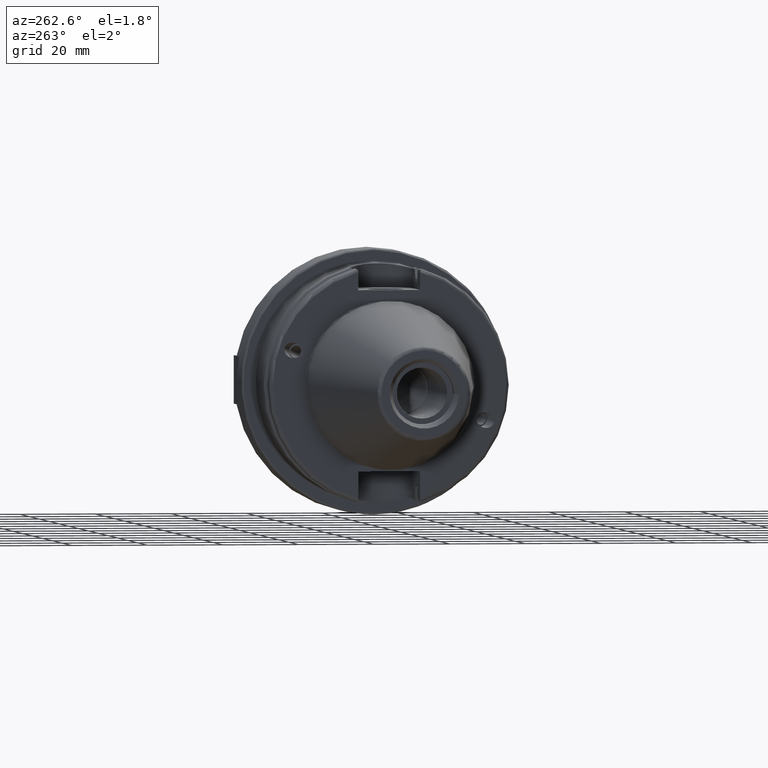
[diagram: clean part render]
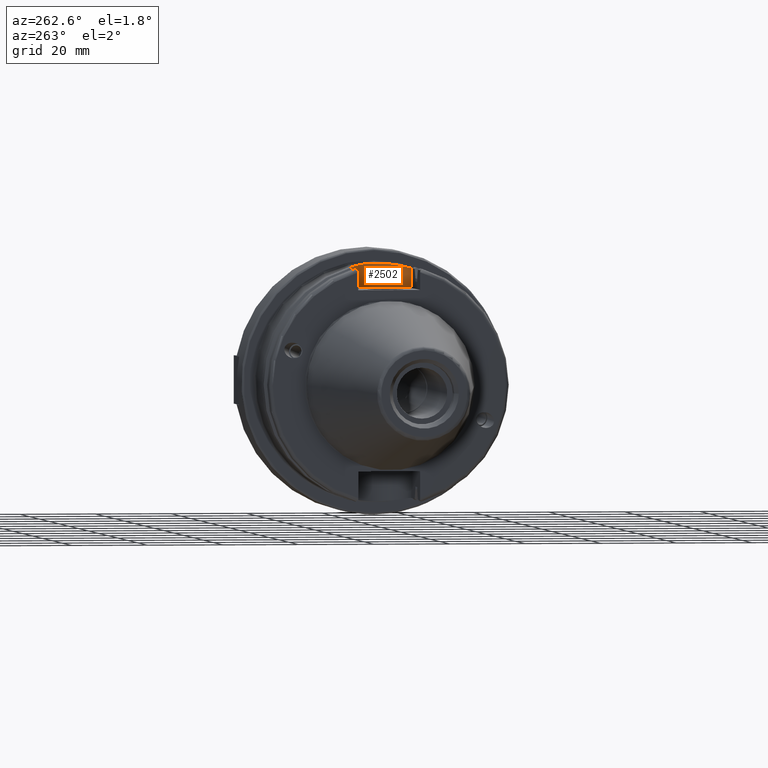
[diagram: same view with one face highlighted and labeled with its STEP entity id]
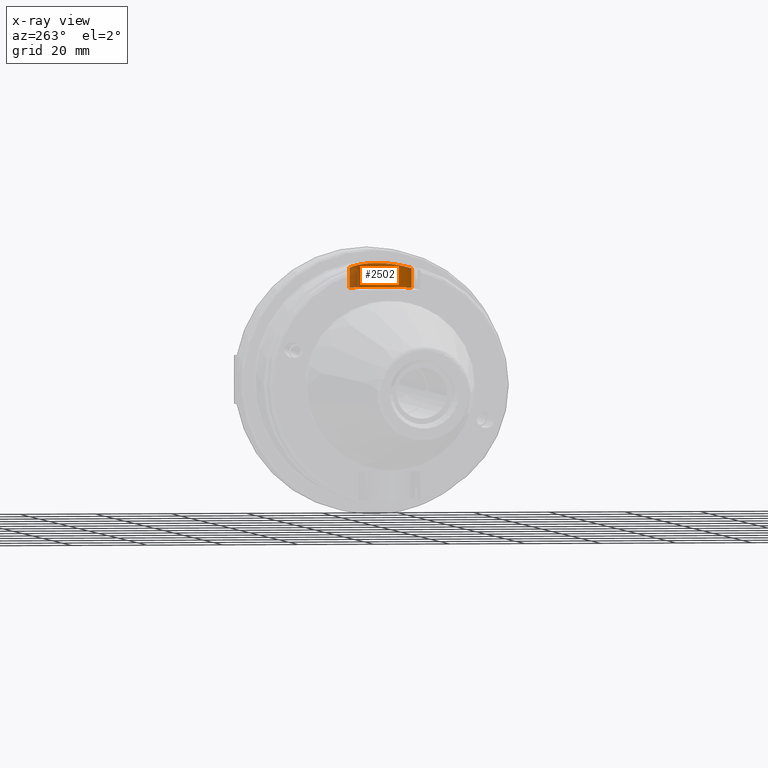
[diagram: x-ray of the same camera — body ghosted, the highlighted face saturated]
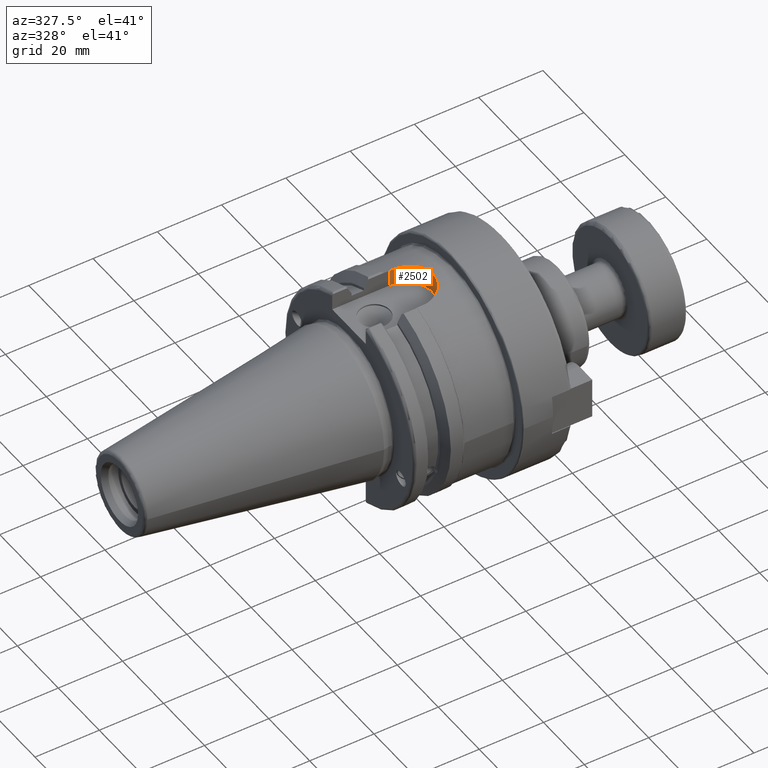
[diagram: same view with one face highlighted and labeled with its STEP entity id]
A machine part, auxiliary view. The second image highlights one B-rep face of the part: STEP entity #2502.
The next image is the same camera in x-ray: the body ghosted, the highlighted face saturated — about 11% of this face is hidden behind the body in this view.
A second angle (auxiliary view) of the same face is appended — the face is thin or edge-on in the first view.
In plain terms, the highlighted cylindrical surface (edge-blend (fillet) strip) has radius 8.19 mm, axis along (0, 0, 1).
Its self-contained STEP definition (entity closure, byte-faithful):
#122=CYLINDRICAL_SURFACE('',#2794,8.19000000000001);
#239=CIRCLE('',#2795,8.19000000000001);
#364=FACE_OUTER_BOUND('',#520,.T.);
#520=EDGE_LOOP('',(#1803,#1804,#1805,#1806));
#690=LINE('',#4201,#851);
#691=LINE('',#4204,#852);
#851=VECTOR('',#3213,10.);
#852=VECTOR('',#3216,10.);
#989=B_SPLINE_CURVE_WITH_KNOTS('',3,(#4088,#4089,#4090,#4091,#4092,#4093,
#4094,#4095,#4096,#4097,#4098,#4099,#4100,#4101,#4102,#4103,#4104,#4105),
 .UNSPECIFIED.,.F.,.F.,(4,2,2,2,2,2,2,2,4),(-2.48058401696442,-2.1704846734033,
-1.86038532984219,-1.5503386691622,-1.24029200848221,-0.930245347802225,
-0.620198687122238,-0.310099343561118,0.),.UNSPECIFIED.);
#1068=VERTEX_POINT('',#4085);
#1069=VERTEX_POINT('',#4087);
#1086=VERTEX_POINT('',#4200);
#1087=VERTEX_POINT('',#4202);
#1337=EDGE_CURVE('',#1068,#1069,#989,.T.);
#1360=EDGE_CURVE('',#1086,#1068,#690,.T.);
#1361=EDGE_CURVE('',#1087,#1086,#239,.T.);
#1362=EDGE_CURVE('',#1087,#1069,#691,.T.);
#1803=ORIENTED_EDGE('',*,*,#1337,.F.);
#1804=ORIENTED_EDGE('',*,*,#1360,.F.);
#1805=ORIENTED_EDGE('',*,*,#1361,.F.);
#1806=ORIENTED_EDGE('',*,*,#1362,.T.);
#2502=ADVANCED_FACE('',(#364),#122,.F.);
#2794=AXIS2_PLACEMENT_3D('',#4199,#3211,#3212);
#2795=AXIS2_PLACEMENT_3D('',#4203,#3214,#3215);
#3211=DIRECTION('center_axis',(0.,0.,1.));
#3212=DIRECTION('ref_axis',(1.08446693492078E-15,-1.,0.));
#3213=DIRECTION('',(0.,0.,1.));
#3214=DIRECTION('center_axis',(0.,0.,1.));
#3215=DIRECTION('ref_axis',(1.08446693492078E-15,-1.,0.));
#3216=DIRECTION('',(0.,0.,1.));
#4085=CARTESIAN_POINT('',(20.985,8.19,30.157692219399));
#4087=CARTESIAN_POINT('',(20.985,-8.19000000000003,30.157692219399));
#4088=CARTESIAN_POINT('Ctrl Pts',(20.985,8.19000000000002,30.157692219399));
#4089=CARTESIAN_POINT('Ctrl Pts',(22.018664478537,8.19000000000002,30.157692219399));
#4090=CARTESIAN_POINT('Ctrl Pts',(23.1177289031099,7.98242969105083,30.2163776881057));
#4091=CARTESIAN_POINT('Ctrl Pts',(25.1340267300331,7.14515921681834,30.4252421272864));
#4092=CARTESIAN_POINT('Ctrl Pts',(26.0517065657425,6.5157025100931,30.5720736251644));
#4093=CARTESIAN_POINT('Ctrl Pts',(27.5005794248904,5.06682965094526,30.8453094903201));
#4094=CARTESIAN_POINT('Ctrl Pts',(28.130131960371,4.14909882987701,30.9899080370957));
#4095=CARTESIAN_POINT('Ctrl Pts',(28.9674725557229,2.13261921574191,31.193610827595));
#4096=CARTESIAN_POINT('Ctrl Pts',(29.175,1.03348886893331,31.25));
#4097=CARTESIAN_POINT('Ctrl Pts',(29.175,-1.03348886893327,31.25));
#4098=CARTESIAN_POINT('Ctrl Pts',(28.9674725557229,-2.13261921574187,31.193610827595));
#4099=CARTESIAN_POINT('Ctrl Pts',(28.130131960371,-4.14909882987697,30.9899080370957));
#4100=CARTESIAN_POINT('Ctrl Pts',(27.5005794248904,-5.06682965094522,30.8453094903202));
#4101=CARTESIAN_POINT('Ctrl Pts',(26.0517065657425,-6.51570251009306,30.5720736251644));
#4102=CARTESIAN_POINT('Ctrl Pts',(25.1340267300331,-7.14515921681831,30.4252421272864));
#4103=CARTESIAN_POINT('Ctrl Pts',(23.1177289031099,-7.9824296910508,30.2163776881057));
#4104=CARTESIAN_POINT('Ctrl Pts',(22.018664478537,-8.18999999999999,30.157692219399));
#4105=CARTESIAN_POINT('Ctrl Pts',(20.985,-8.18999999999999,30.157692219399));
#4199=CARTESIAN_POINT('Origin',(20.985,1.58308003551686E-14,25.));
#4200=CARTESIAN_POINT('',(20.985,8.19,25.));
#4201=CARTESIAN_POINT('',(20.985,8.19,25.));
#4202=CARTESIAN_POINT('',(20.985,-8.19000000000003,25.));
#4203=CARTESIAN_POINT('Origin',(20.985,1.58308003551686E-14,25.));
#4204=CARTESIAN_POINT('',(20.985,-8.19000000000003,25.));